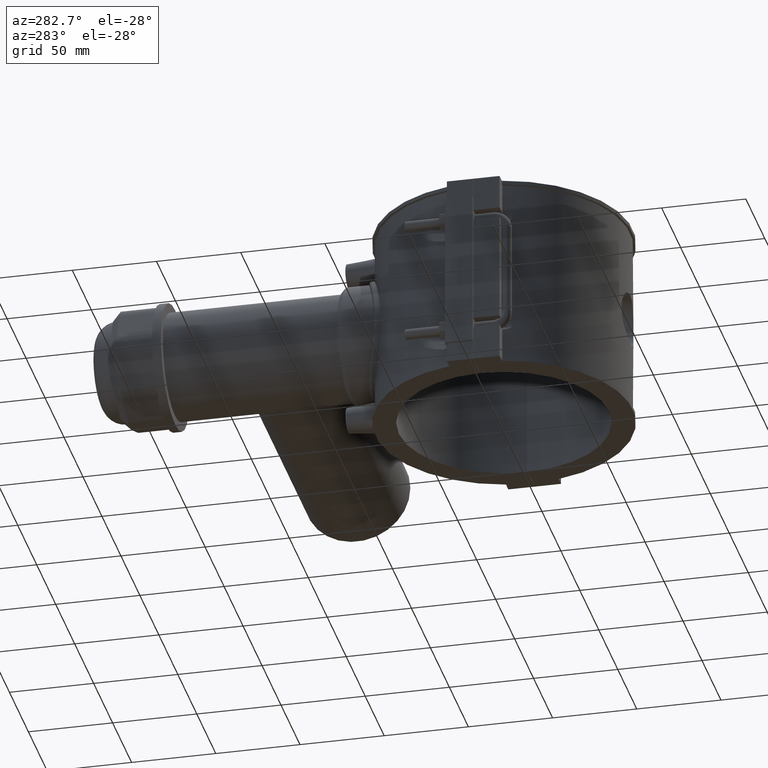
[diagram: clean part render]
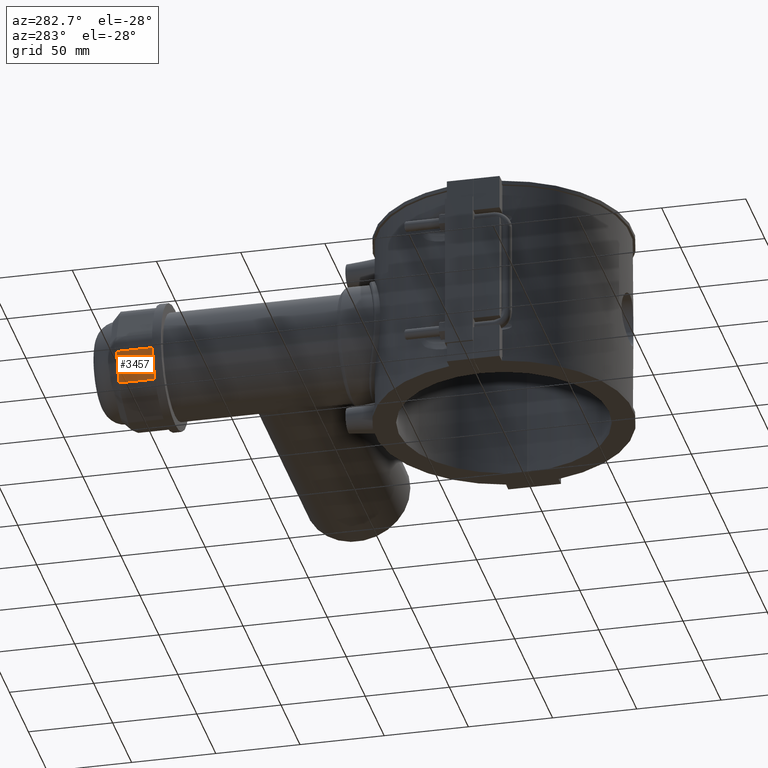
[diagram: same view with one face highlighted and labeled with its STEP entity id]
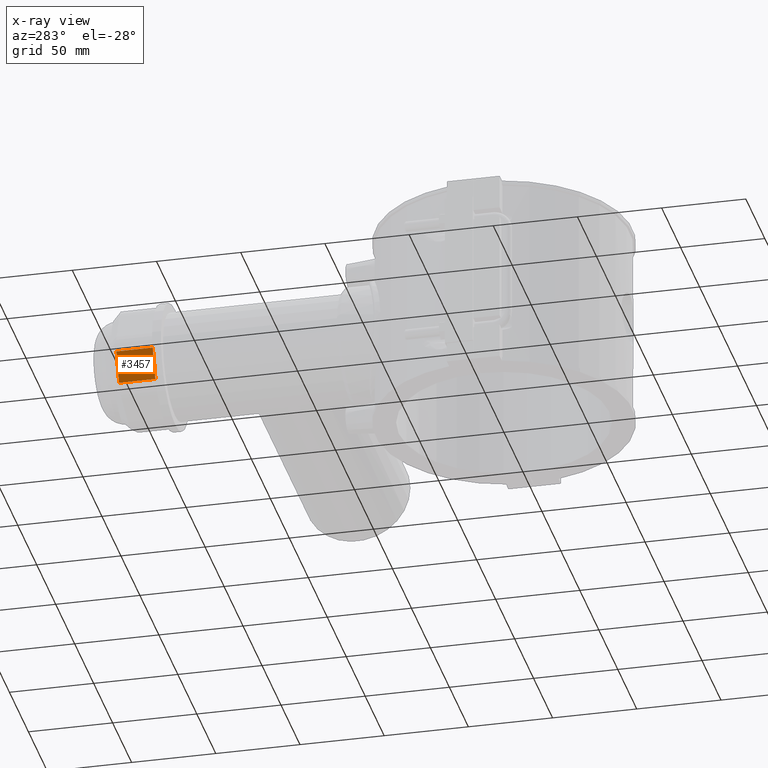
[diagram: x-ray of the same camera — body ghosted, the highlighted face saturated]
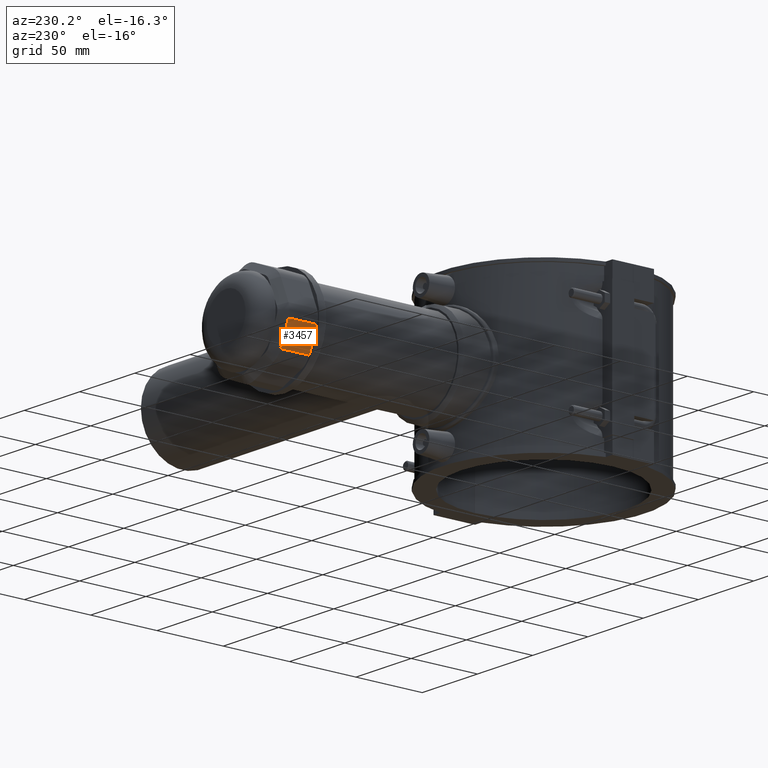
[diagram: same view with one face highlighted and labeled with its STEP entity id]
A machine part, auxiliary view. The second image highlights one B-rep face of the part: STEP entity #3457.
The next image is the same camera in x-ray: the body ghosted, the highlighted face saturated — about 0% of this face is hidden behind the body in this view.
A second angle (auxiliary view) of the same face is appended — the face is thin or edge-on in the first view.
In plain terms, the highlighted planar face has unit normal (-0.9239, 0, -0.3827).
Its self-contained STEP definition (entity closure, byte-faithful):
#82=LINE('',#5413,#381);
#91=LINE('',#5454,#390);
#92=LINE('',#5458,#391);
#93=LINE('',#5459,#392);
#381=VECTOR('',#4086,18.3459183680543);
#390=VECTOR('',#4147,21.5499999999999);
#391=VECTOR('',#4152,21.5499999999999);
#392=VECTOR('',#4153,18.3459183680543);
#865=FACE_OUTER_BOUND('',#1082,.T.);
#1082=EDGE_LOOP('',(#2418,#2419,#2420,#2421));
#1487=VERTEX_POINT('',#5395);
#1491=VERTEX_POINT('',#5411);
#1497=VERTEX_POINT('',#5453);
#1498=VERTEX_POINT('',#5457);
#1841=EDGE_CURVE('',#1491,#1487,#82,.T.);
#1862=EDGE_CURVE('',#1487,#1497,#91,.T.);
#1864=EDGE_CURVE('',#1498,#1491,#92,.T.);
#1865=EDGE_CURVE('',#1497,#1498,#93,.T.);
#2418=ORIENTED_EDGE('',*,*,#1841,.F.);
#2419=ORIENTED_EDGE('',*,*,#1864,.F.);
#2420=ORIENTED_EDGE('',*,*,#1865,.F.);
#2421=ORIENTED_EDGE('',*,*,#1862,.F.);
#3316=PLANE('',#3701);
#3457=ADVANCED_FACE('',(#865),#3316,.T.);
#3701=AXIS2_PLACEMENT_3D('',#5456,#4150,#4151);
#4086=DIRECTION('',(-0.38268343236509,-2.82856528071925E-16,0.923879532511287));
#4147=DIRECTION('',(0.,-1.,-3.34530478229802E-16));
#4150=DIRECTION('center_axis',(-0.923879532511287,1.28019271639716E-16,
-0.38268343236509));
#4151=DIRECTION('ref_axis',(0.38268343236509,0.,-0.923879532511287));
#4152=DIRECTION('',(0.,1.,3.34530478229802E-16));
#4153=DIRECTION('',(0.38268343236509,2.82856528071925E-16,-0.923879532511287));
#5395=CARTESIAN_POINT('',(-35.5185916527362,222.11,-4.78354290456358));
#5411=CARTESIAN_POINT('',(-28.4979126417594,222.11,-21.7329613899319));
#5413=CARTESIAN_POINT('',(-40.057426932523,222.11,6.17417478527527));
#5453=CARTESIAN_POINT('',(-35.5185916527362,200.56,-4.78354290456359));
#5454=CARTESIAN_POINT('',(-35.5185916527362,227.11,-4.78354290456358));
#5456=CARTESIAN_POINT('Origin',(-37.5,227.11,4.55510657864842E-14));
#5457=CARTESIAN_POINT('',(-28.4979126417594,200.56,-21.7329613899319));
#5458=CARTESIAN_POINT('',(-28.4979126417594,227.11,-21.7329613899319));
#5459=CARTESIAN_POINT('',(-40.4551744969404,200.56,7.13442234969269));